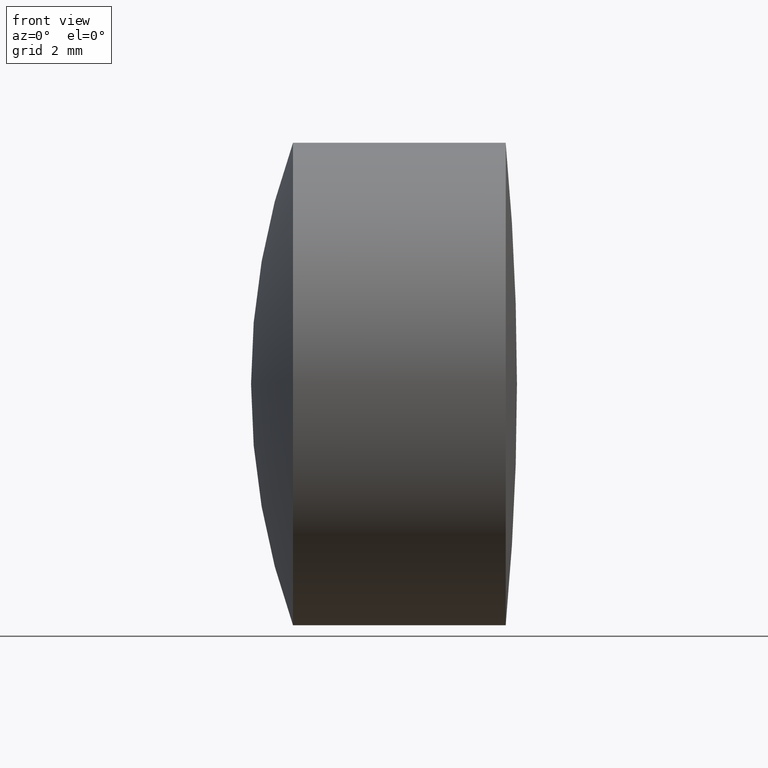
[diagram: clean part render]
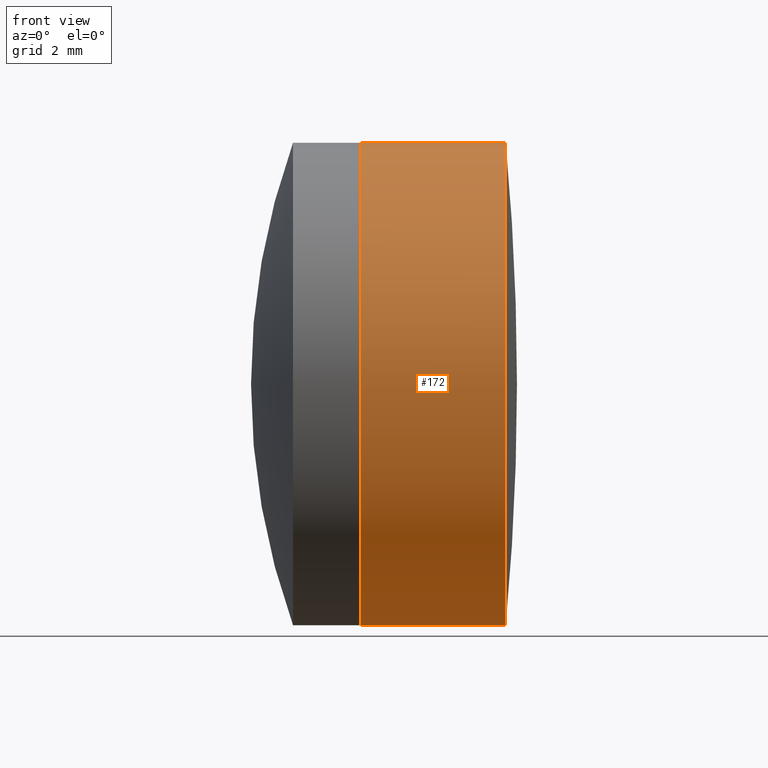
[diagram: same view with one face highlighted and labeled with its STEP entity id]
A machine part, front view. The second image highlights one B-rep face of the part: STEP entity #172.
In plain terms, the highlighted cylindrical surface (partial cylindrical patch) has radius 6.35 mm, axis along (-1, -0, -0).
Its self-contained STEP definition (entity closure, byte-faithful):
#1 = CARTESIAN_POINT ( 'NONE',  ( -0.5519199926577972300, 0.0000000000000000000, 0.0000000000000000000 ) ) ;
#17 = CARTESIAN_POINT ( 'NONE',  ( -0.6346800517470375700, 7.776507174585696100E-016, -6.350000000000003200 ) ) ;
#21 = AXIS2_PLACEMENT_3D ( 'NONE', #248, #195, #343 ) ;
#22 = DIRECTION ( 'NONE',  ( 0.0000000000000000000, 0.0000000000000000000, 1.000000000000000000 ) ) ;
#24 = ORIENTED_EDGE ( 'NONE', *, *, #257, .T. ) ;
#25 = CARTESIAN_POINT ( 'NONE',  ( -0.6346800517470375700, 0.0000000000000000000, 0.0000000000000000000 ) ) ;
#29 = ORIENTED_EDGE ( 'NONE', *, *, #235, .T. ) ;
#39 = AXIS2_PLACEMENT_3D ( 'NONE', #25, #183, #301 ) ;
#46 = DIRECTION ( 'NONE',  ( -1.000000000000000000, -0.0000000000000000000, -0.0000000000000000000 ) ) ;
#55 = VERTEX_POINT ( 'NONE', #84 ) ;
#75 = CARTESIAN_POINT ( 'NONE',  ( 3.181129220150388900, 0.0000000000000000000, 6.350000000000001400 ) ) ;
#76 = CARTESIAN_POINT ( 'NONE',  ( -0.5519199926577972300, 7.776507174585694100E-016, -6.350000000000001400 ) ) ;
#84 = CARTESIAN_POINT ( 'NONE',  ( -0.6346800517470375700, 0.0000000000000000000, 6.350000000000003200 ) ) ;
#111 = DIRECTION ( 'NONE',  ( -1.000000000000000000, -0.0000000000000000000, -0.0000000000000000000 ) ) ;
#115 = VECTOR ( 'NONE', #196, 1000.000000000000000 ) ;
#126 = EDGE_CURVE ( 'NONE', #316, #55, #176, .T. ) ;
#132 = ORIENTED_EDGE ( 'NONE', *, *, #140, .F. ) ;
#140 = EDGE_CURVE ( 'NONE', #340, #316, #346, .T. ) ;
#144 = CARTESIAN_POINT ( 'NONE',  ( -0.5519199926577972300, 0.0000000000000000000, 6.350000000000001400 ) ) ;
#155 = CARTESIAN_POINT ( 'NONE',  ( 3.181129220150388900, 7.776507174585694100E-016, -6.350000000000001400 ) ) ;
#161 = FACE_OUTER_BOUND ( 'NONE', #203, .T. ) ;
#172 = ADVANCED_FACE ( 'NONE', ( #161 ), #313, .T. ) ;
#176 = CIRCLE ( 'NONE', #39, 6.350000000000002300 ) ;
#183 = DIRECTION ( 'NONE',  ( -1.000000000000000000, -0.0000000000000000000, -0.0000000000000000000 ) ) ;
#185 = AXIS2_PLACEMENT_3D ( 'NONE', #1, #111, #22 ) ;
#195 = DIRECTION ( 'NONE',  ( -1.000000000000000000, -0.0000000000000000000, -0.0000000000000000000 ) ) ;
#196 = DIRECTION ( 'NONE',  ( -1.000000000000000000, -0.0000000000000000000, -0.0000000000000000000 ) ) ;
#203 = EDGE_LOOP ( 'NONE', ( #132, #29, #24, #314 ) ) ;
#235 = EDGE_CURVE ( 'NONE', #340, #322, #261, .T. ) ;
#245 = LINE ( 'NONE', #144, #115 ) ;
#248 = CARTESIAN_POINT ( 'NONE',  ( 3.181129220150388900, 0.0000000000000000000, 0.0000000000000000000 ) ) ;
#257 = EDGE_CURVE ( 'NONE', #322, #55, #245, .T. ) ;
#261 = CIRCLE ( 'NONE', #21, 6.350000000000001400 ) ;
#276 = VECTOR ( 'NONE', #46, 1000.000000000000000 ) ;
#301 = DIRECTION ( 'NONE',  ( 0.0000000000000000000, 0.0000000000000000000, 1.000000000000000000 ) ) ;
#313 = CYLINDRICAL_SURFACE ( 'NONE', #185, 6.350000000000001400 ) ;
#314 = ORIENTED_EDGE ( 'NONE', *, *, #126, .F. ) ;
#316 = VERTEX_POINT ( 'NONE', #17 ) ;
#322 = VERTEX_POINT ( 'NONE', #75 ) ;
#340 = VERTEX_POINT ( 'NONE', #155 ) ;
#343 = DIRECTION ( 'NONE',  ( 0.0000000000000000000, 0.0000000000000000000, 1.000000000000000000 ) ) ;
#346 = LINE ( 'NONE', #76, #276 ) ;